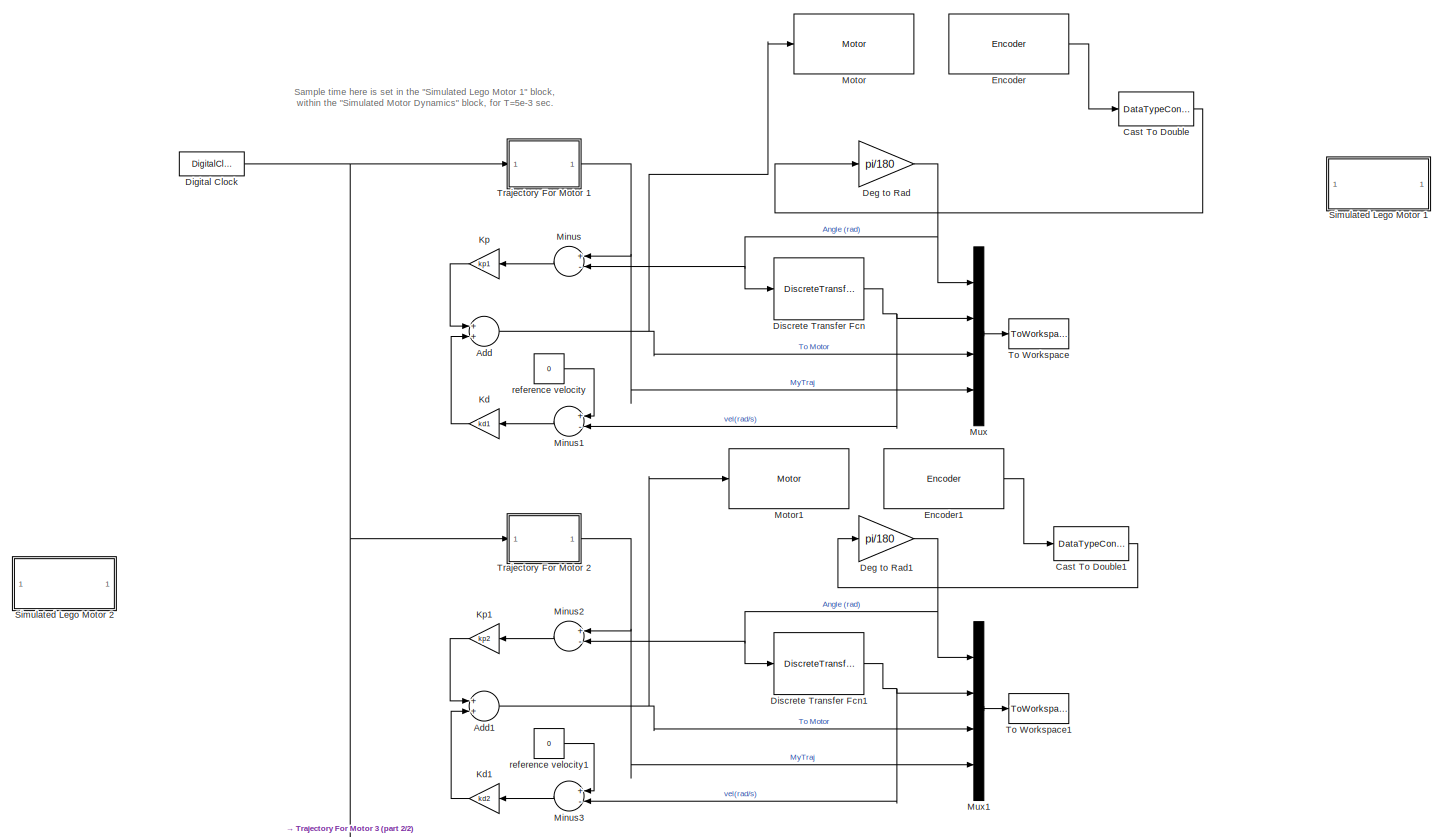
[diagram: root canvas - part 1/2, full width, middle band]
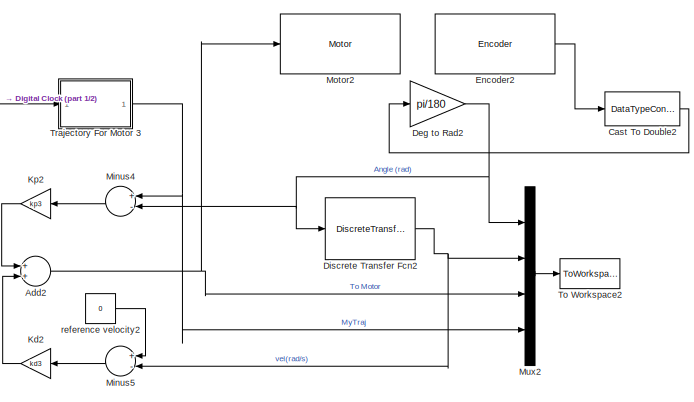
[diagram: root canvas - part 2/2, bottom center region]
MODEL slx_8c6ca40ef68f
KIND model
CONFIG AbsTol = auto
CONFIG EnableMultiTasking = on
CONFIG FixedStep = auto
CONFIG MaxStep = auto
CONFIG MinStep = auto
CONFIG RelTol = 1e-3
CONFIG SampleTimeConstraint = Unconstrained
CONFIG Solver = FixedStepDiscrete
CONFIG SolverName = FixedStepDiscrete
CONFIG StartTime = 0.0
CONFIG StopTime = 20
BLOCK [Sum] Add
  InputSameDT = off
  OutDataTypeStr = Inherit: Inherit via internal rule
  Ports = [2, 1]
  SaturateOnIntegerOverflow = off
BLOCK [Sum] Add1
  InputSameDT = off
  OutDataTypeStr = Inherit: Inherit via internal rule
  Ports = [2, 1]
  SaturateOnIntegerOverflow = off
BLOCK [Sum] Add2
  InputSameDT = off
  OutDataTypeStr = Inherit: Inherit via internal rule
  Ports = [2, 1]
  SaturateOnIntegerOverflow = off
BLOCK [DataTypeConversion] Cast To Double
  OutDataTypeStr = double
  RndMeth = Floor
  SaturateOnIntegerOverflow = off
BLOCK [DataTypeConversion] Cast To Double1
  OutDataTypeStr = double
  RndMeth = Floor
  SaturateOnIntegerOverflow = off
BLOCK [DataTypeConversion] Cast To Double2
  OutDataTypeStr = double
  RndMeth = Floor
  SaturateOnIntegerOverflow = off
BLOCK [Gain] Deg to Rad
  Gain = pi/180
  OutDataTypeStr = Inherit: Inherit via internal rule
  ParamDataTypeStr = Inherit: Inherit via internal rule
  SaturateOnIntegerOverflow = off
BLOCK [Gain] Deg to Rad1
  Gain = pi/180
  OutDataTypeStr = Inherit: Inherit via internal rule
  ParamDataTypeStr = Inherit: Inherit via internal rule
  SaturateOnIntegerOverflow = off
BLOCK [Gain] Deg to Rad2
  Gain = pi/180
  OutDataTypeStr = Inherit: Inherit via internal rule
  ParamDataTypeStr = Inherit: Inherit via internal rule
  SaturateOnIntegerOverflow = off
BLOCK [DigitalClock] Digital Clock
  SampleTime = 5e-3
BLOCK [DiscreteTransferFcn] Discrete Transfer Fcn
  Denominator = [1 -f]
  InputPortMap = u0
  Numerator = [A -A]
  Ports = [1, 1]
BLOCK [DiscreteTransferFcn] Discrete Transfer Fcn1
  Denominator = [1 -f]
  InputPortMap = u0
  Numerator = [A -A]
  Ports = [1, 1]
BLOCK [DiscreteTransferFcn] Discrete Transfer Fcn2
  Denominator = [1 -f]
  InputPortMap = u0
  Numerator = [A -A]
  Ports = [1, 1]
BLOCK [Reference] Encoder  REF=legoev3lib/Encoder
  Ports = [0, 1]
  SourceBlock = legoev3lib/Encoder
  SourceProductBaseCode = LEGOEV3
  SourceProductName = Simulink Support Package for LEGO MINDSTORMS EV3 Hardware
  SourceType = LEGO MINDSTORMS EV3 Encoder
BLOCK [Reference] Encoder1  REF=legoev3lib/Encoder
  Ports = [0, 1]
  SourceBlock = legoev3lib/Encoder
  SourceProductBaseCode = LEGOEV3
  SourceProductName = Simulink Support Package for LEGO MINDSTORMS EV3 Hardware
  SourceType = LEGO MINDSTORMS EV3 Encoder
BLOCK [Reference] Encoder2  REF=legoev3lib/Encoder
  Ports = [0, 1]
  SourceBlock = legoev3lib/Encoder
  SourceProductBaseCode = LEGOEV3
  SourceProductName = Simulink Support Package for LEGO MINDSTORMS EV3 Hardware
  SourceType = LEGO MINDSTORMS EV3 Encoder
BLOCK [Gain] Kd
  Gain = kd1
  OutDataTypeStr = Inherit: Inherit via internal rule
  ParamDataTypeStr = Inherit: Inherit via internal rule
  SaturateOnIntegerOverflow = off
BLOCK [Gain] Kd1
  Gain = kd2
  OutDataTypeStr = Inherit: Inherit via internal rule
  ParamDataTypeStr = Inherit: Inherit via internal rule
  SaturateOnIntegerOverflow = off
BLOCK [Gain] Kd2
  Gain = kd3
  OutDataTypeStr = Inherit: Inherit via internal rule
  ParamDataTypeStr = Inherit: Inherit via internal rule
  SaturateOnIntegerOverflow = off
BLOCK [Gain] Kp
  Gain = kp1
  OutDataTypeStr = Inherit: Inherit via internal rule
  ParamDataTypeStr = Inherit: Inherit via internal rule
  SaturateOnIntegerOverflow = off
BLOCK [Gain] Kp1
  Gain = kp2
  OutDataTypeStr = Inherit: Inherit via internal rule
  ParamDataTypeStr = Inherit: Inherit via internal rule
  SaturateOnIntegerOverflow = off
BLOCK [Gain] Kp2
  Gain = kp3
  OutDataTypeStr = Inherit: Inherit via internal rule
  ParamDataTypeStr = Inherit: Inherit via internal rule
  SaturateOnIntegerOverflow = off
BLOCK [Sum] Minus
  InputSameDT = off
  Inputs = +-
  OutDataTypeStr = Inherit: Inherit via internal rule
  Ports = [2, 1]
  SaturateOnIntegerOverflow = off
BLOCK [Sum] Minus1
  InputSameDT = off
  Inputs = +-
  OutDataTypeStr = Inherit: Inherit via internal rule
  Ports = [2, 1]
  SaturateOnIntegerOverflow = off
BLOCK [Sum] Minus2
  InputSameDT = off
  Inputs = +-
  OutDataTypeStr = Inherit: Inherit via internal rule
  Ports = [2, 1]
  SaturateOnIntegerOverflow = off
BLOCK [Sum] Minus3
  InputSameDT = off
  Inputs = +-
  OutDataTypeStr = Inherit: Inherit via internal rule
  Ports = [2, 1]
  SaturateOnIntegerOverflow = off
BLOCK [Sum] Minus4
  InputSameDT = off
  Inputs = +-
  OutDataTypeStr = Inherit: Inherit via internal rule
  Ports = [2, 1]
  SaturateOnIntegerOverflow = off
BLOCK [Sum] Minus5
  InputSameDT = off
  Inputs = +-
  OutDataTypeStr = Inherit: Inherit via internal rule
  Ports = [2, 1]
  SaturateOnIntegerOverflow = off
BLOCK [Reference] Motor  REF=legoev3lib/Motor
  Ports = [1]
  SourceBlock = legoev3lib/Motor
  SourceProductBaseCode = LEGOEV3
  SourceProductName = Simulink Support Package for LEGO MINDSTORMS EV3 Hardware
  SourceType = LEGO MINDSTORMS EV3 Motor
BLOCK [Reference] Motor1  REF=legoev3lib/Motor
  Ports = [1]
  SourceBlock = legoev3lib/Motor
  SourceProductBaseCode = LEGOEV3
  SourceProductName = Simulink Support Package for LEGO MINDSTORMS EV3 Hardware
  SourceType = LEGO MINDSTORMS EV3 Motor
BLOCK [Reference] Motor2  REF=legoev3lib/Motor
  Ports = [1]
  SourceBlock = legoev3lib/Motor
  SourceProductBaseCode = LEGOEV3
  SourceProductName = Simulink Support Package for LEGO MINDSTORMS EV3 Hardware
  SourceType = LEGO MINDSTORMS EV3 Motor
BLOCK [Mux] Mux
  DisplayOption = bar
  Ports = [4, 1]
BLOCK [Mux] Mux1
  DisplayOption = bar
  Ports = [4, 1]
BLOCK [Mux] Mux2
  DisplayOption = bar
  Ports = [4, 1]
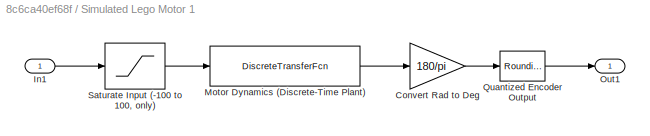
BLOCK [SubSystem] Simulated Lego Motor 1
  Ports = [1, 1]
  RequestExecContextInheritance = off
BLOCK [Gain] Simulated Lego Motor 1/Convert Rad to Deg
  Gain = 180/pi
  OutDataTypeStr = Inherit: Inherit via internal rule
  ParamDataTypeStr = Inherit: Inherit via internal rule
  SaturateOnIntegerOverflow = off
BLOCK [Inport] Simulated Lego Motor 1/In1
  IconDisplay = Port number
BLOCK [DiscreteTransferFcn] Simulated Lego Motor 1/Motor Dynamics (Discrete-Time Plant)
  Denominator = [1   -1.9729    0.9729]
  InputPortMap = u0
  Numerator = [0.00001734  0.00001718]
  Ports = [1, 1]
BLOCK [Outport] Simulated Lego Motor 1/Out1
  IconDisplay = Port number
  VectorParamsAs1DForOutWhenUnconnected = on
BLOCK [Rounding] Simulated Lego Motor 1/Quantized Encoder Output
  Operator = round
BLOCK [Saturate] Simulated Lego Motor 1/Saturate Input (-100 to 100, only)
  InputPortMap = u0
  LowerLimit = -100
  Ports = [1, 1]
  UpperLimit = 100
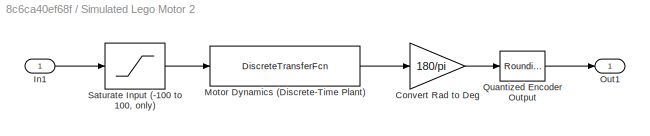
BLOCK [SubSystem] Simulated Lego Motor 2
  Ports = [1, 1]
  RequestExecContextInheritance = off
BLOCK [Gain] Simulated Lego Motor 2/Convert Rad to Deg
  Gain = 180/pi
  OutDataTypeStr = Inherit: Inherit via internal rule
  ParamDataTypeStr = Inherit: Inherit via internal rule
  SaturateOnIntegerOverflow = off
BLOCK [Inport] Simulated Lego Motor 2/In1
  IconDisplay = Port number
BLOCK [DiscreteTransferFcn] Simulated Lego Motor 2/Motor Dynamics (Discrete-Time Plant)
  Denominator = [1   -1.9729    0.9729]
  InputPortMap = u0
  Numerator = [0.00001734  0.00001718]
  Ports = [1, 1]
BLOCK [Outport] Simulated Lego Motor 2/Out1
  IconDisplay = Port number
  VectorParamsAs1DForOutWhenUnconnected = on
BLOCK [Rounding] Simulated Lego Motor 2/Quantized Encoder Output
  Operator = round
BLOCK [Saturate] Simulated Lego Motor 2/Saturate Input (-100 to 100, only)
  InputPortMap = u0
  LowerLimit = -100
  Ports = [1, 1]
  UpperLimit = 100
BLOCK [ToWorkspace] To Workspace
  FixptAsFi = on
  MaxDataPoints = inf
  Ports = [1]
  SampleTime = -1
  Save2DSignal = 3-D array (concatenate along third dimension)
  SaveFormat = Structure With Time
  VariableName = my_data
BLOCK [ToWorkspace] To Workspace1
  FixptAsFi = on
  MaxDataPoints = inf
  Ports = [1]
  SampleTime = -1
  Save2DSignal = 3-D array (concatenate along third dimension)
  SaveFormat = Structure With Time
  VariableName = my_data1
BLOCK [ToWorkspace] To Workspace2
  FixptAsFi = on
  MaxDataPoints = inf
  Ports = [1]
  SampleTime = -1
  Save2DSignal = 3-D array (concatenate along third dimension)
  SaveFormat = Structure With Time
  VariableName = my_data2
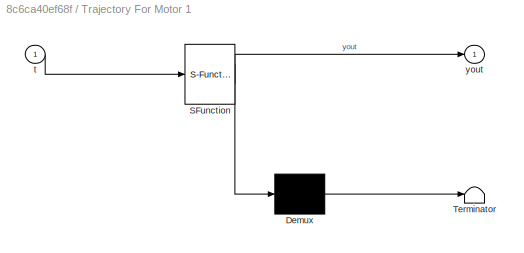
BLOCK [SubSystem] Trajectory For Motor 1
  ErrorFcn = Stateflow.Translate.translate
  PermitHierarchicalResolution = ExplicitOnly
  Ports = [1, 1]
  RequestExecContextInheritance = off
  SFBlockType = MATLAB Function
  TreatAsAtomicUnit = on
BLOCK [Demux] Trajectory For Motor 1/ Demux 
  Outputs = 1
  Ports = [1, 1]
BLOCK [S-Function] Trajectory For Motor 1/ SFunction 
  EnableBusSupport = on
  FunctionName = sf_sfun
  PortCounts = [1 2]
  Ports = [1, 2]
  SFcnIsStateOwnerBlock = off
  SFunctionDeploymentMode = off
  Tag = Stateflow S-Function prelab2b 2
BLOCK [Terminator] Trajectory For Motor 1/ Terminator 
BLOCK [Inport] Trajectory For Motor 1/t
  IconDisplay = Port number
BLOCK [Outport] Trajectory For Motor 1/yout
  IconDisplay = Port number
  VectorParamsAs1DForOutWhenUnconnected = on
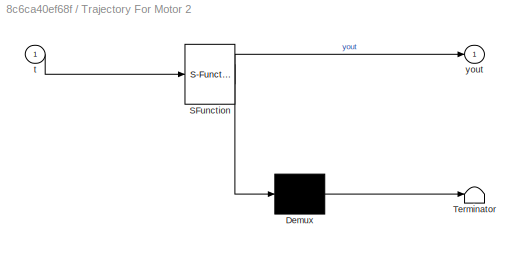
BLOCK [SubSystem] Trajectory For Motor 2
  ErrorFcn = Stateflow.Translate.translate
  PermitHierarchicalResolution = ExplicitOnly
  Ports = [1, 1]
  RequestExecContextInheritance = off
  SFBlockType = MATLAB Function
  TreatAsAtomicUnit = on
BLOCK [Demux] Trajectory For Motor 2/ Demux 
  Outputs = 1
  Ports = [1, 1]
BLOCK [S-Function] Trajectory For Motor 2/ SFunction 
  EnableBusSupport = on
  FunctionName = sf_sfun
  PortCounts = [1 2]
  Ports = [1, 2]
  SFcnIsStateOwnerBlock = off
  SFunctionDeploymentMode = off
  Tag = Stateflow S-Function prelab2b 1
BLOCK [Terminator] Trajectory For Motor 2/ Terminator 
BLOCK [Inport] Trajectory For Motor 2/t
  IconDisplay = Port number
BLOCK [Outport] Trajectory For Motor 2/yout
  IconDisplay = Port number
  VectorParamsAs1DForOutWhenUnconnected = on
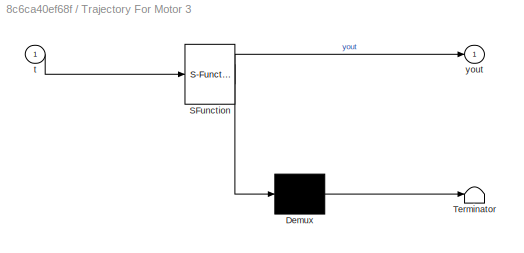
BLOCK [SubSystem] Trajectory For Motor 3
  ErrorFcn = Stateflow.Translate.translate
  PermitHierarchicalResolution = ExplicitOnly
  Ports = [1, 1]
  RequestExecContextInheritance = off
  SFBlockType = MATLAB Function
  TreatAsAtomicUnit = on
BLOCK [Demux] Trajectory For Motor 3/ Demux 
  Outputs = 1
  Ports = [1, 1]
BLOCK [S-Function] Trajectory For Motor 3/ SFunction 
  EnableBusSupport = on
  FunctionName = sf_sfun
  PortCounts = [1 2]
  Ports = [1, 2]
  SFcnIsStateOwnerBlock = off
  SFunctionDeploymentMode = off
  Tag = Stateflow S-Function prelab2b 3
BLOCK [Terminator] Trajectory For Motor 3/ Terminator 
BLOCK [Inport] Trajectory For Motor 3/t
  IconDisplay = Port number
BLOCK [Outport] Trajectory For Motor 3/yout
  IconDisplay = Port number
  VectorParamsAs1DForOutWhenUnconnected = on
BLOCK [Constant] reference velocity
  Value = 0
BLOCK [Constant] reference velocity1
  Value = 0
BLOCK [Constant] reference velocity2
  Value = 0
ANNOTATION (root): Sample time here is set in the "Simulated Lego Motor 1" block, within the "Simulated Motor Dynamics" block, for T=5e-3 sec.
NET Add1:1 -> Motor1:1, Mux1:3
NET Add2:1 -> Motor2:1, Mux2:3
NET Add:1 -> Motor:1, Mux:3
LINE Cast To Double1:1 -> Deg to Rad1:1
LINE Cast To Double2:1 -> Deg to Rad2:1
LINE Cast To Double:1 -> Deg to Rad:1
NET Deg to Rad1:1 -> Discrete Transfer Fcn1:1, Minus2:2, Mux1:1
NET Deg to Rad2:1 -> Discrete Transfer Fcn2:1, Minus4:2, Mux2:1
NET Deg to Rad:1 -> Discrete Transfer Fcn:1, Minus:2, Mux:1
NET Digital Clock:1 -> Trajectory For Motor 1:1, Trajectory For Motor 2:1, Trajectory For Motor 3:1
NET Discrete Transfer Fcn1:1 -> Minus3:2, Mux1:2
NET Discrete Transfer Fcn2:1 -> Minus5:2, Mux2:2
NET Discrete Transfer Fcn:1 -> Minus1:2, Mux:2
LINE Encoder1:1 -> Cast To Double1:1
LINE Encoder2:1 -> Cast To Double2:1
LINE Encoder:1 -> Cast To Double:1
LINE Kd1:1 -> Add1:2
LINE Kd2:1 -> Add2:2
LINE Kd:1 -> Add:2
LINE Kp1:1 -> Add1:1
LINE Kp2:1 -> Add2:1
LINE Kp:1 -> Add:1
LINE Minus1:1 -> Kd:1
LINE Minus2:1 -> Kp1:1
LINE Minus3:1 -> Kd1:1
LINE Minus4:1 -> Kp2:1
LINE Minus5:1 -> Kd2:1
LINE Minus:1 -> Kp:1
LINE Mux1:1 -> To Workspace1:1
LINE Mux2:1 -> To Workspace2:1
LINE Mux:1 -> To Workspace:1
LINE Simulated Lego Motor 1/Convert Rad to Deg:1 -> Simulated Lego Motor 1/Quantized Encoder Output:1
LINE Simulated Lego Motor 1/In1:1 -> Simulated Lego Motor 1/Saturate Input (-100 to 100, only):1
LINE Simulated Lego Motor 1/Motor Dynamics (Discrete-Time Plant):1 -> Simulated Lego Motor 1/Convert Rad to Deg:1
LINE Simulated Lego Motor 1/Quantized Encoder Output:1 -> Simulated Lego Motor 1/Out1:1
LINE Simulated Lego Motor 1/Saturate Input (-100 to 100, only):1 -> Simulated Lego Motor 1/Motor Dynamics (Discrete-Time Plant):1
LINE Simulated Lego Motor 2/Convert Rad to Deg:1 -> Simulated Lego Motor 2/Quantized Encoder Output:1
LINE Simulated Lego Motor 2/In1:1 -> Simulated Lego Motor 2/Saturate Input (-100 to 100, only):1
LINE Simulated Lego Motor 2/Motor Dynamics (Discrete-Time Plant):1 -> Simulated Lego Motor 2/Convert Rad to Deg:1
LINE Simulated Lego Motor 2/Quantized Encoder Output:1 -> Simulated Lego Motor 2/Out1:1
LINE Simulated Lego Motor 2/Saturate Input (-100 to 100, only):1 -> Simulated Lego Motor 2/Motor Dynamics (Discrete-Time Plant):1
NET Trajectory For Motor 1:1 -> Minus:1, Mux:4
NET Trajectory For Motor 2:1 -> Minus2:1, Mux1:4
NET Trajectory For Motor 3:1 -> Minus4:1, Mux2:4
LINE reference velocity1:1 -> Minus3:1
LINE reference velocity2:1 -> Minus5:1
LINE reference velocity:1 -> Minus1:1
note: NET lines group one-source signal fan-out (src -> all destinations, sorted); 1:1 wires keep LINE
CHART Trajectory For Motor 2 states=1 transitions=1
  STATE_LABEL 'eML_blk_kernel()'
  STATE_LABEL 'SCRIPT:\nfunction yout = MyTrajectory(t)\n\njoint_traj=[0.264668390865136,0.475799229692313,0.632500097122313,0.733915468041950,0.779227079331776,0.767657541793522,0.698477947409933,0.571020384370171,0.384696451761279,0.139023049505138,-0.166343119018979,-0.531560797605545,-0.956547681966371,-1.44091093857329,-1.98386409752323,-2.58413074680076,-3.23983709708612,-3.94839774439829,-4.70640176434860,-5...<+612ch>'
CHART Trajectory For Motor 1 states=1 transitions=1
  STATE_LABEL 'eML_blk_kernel()'
  STATE_LABEL 'SCRIPT:\nfunction yout = MyTrajectory(t)\njoint_traj=[-0.652803856585758,-1.30111368649488,-1.94309823046571,-2.57646452432608,-3.19842293907151,-3.80565181137923,-4.39426197690334,-4.95976197848045,-5.49702541498042,-6.00026291146209,-6.46300263220575,-6.87808523449231,-7.23768175491653,-7.53334612075865,-7.75611756485370,-7.89669157787253,-7.94567991241187,-7.89397848246845,-7.73325391505730,-7.45...<+591ch>'
CHART Trajectory For Motor 3 states=1 transitions=1
  STATE_LABEL 'eML_blk_kernel()'
  STATE_LABEL 'SCRIPT:\nfunction yout = MyTrajectory(t)\njoint_traj=[0.264668390865136,0.475799229692313,0.632500097122313,0.733915468041950,0.779227079331776,0.767657541793522,0.698477947409933,0.571020384370171,0.384696451761279,0.139023049505138,-0.166343119018979,-0.531560797605545,-0.956547681966371,-1.44091093857329,-1.98386409752323,-2.58413074680076,-3.23983709708612,-3.94839774439829,-4.70640176434860,-5....<+609ch>'
